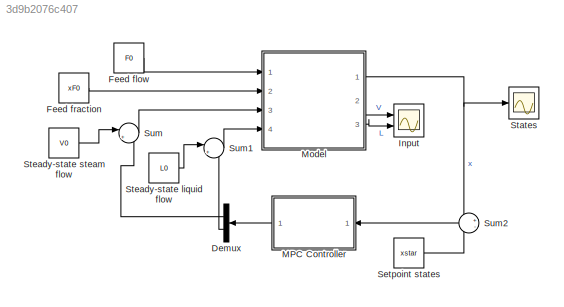
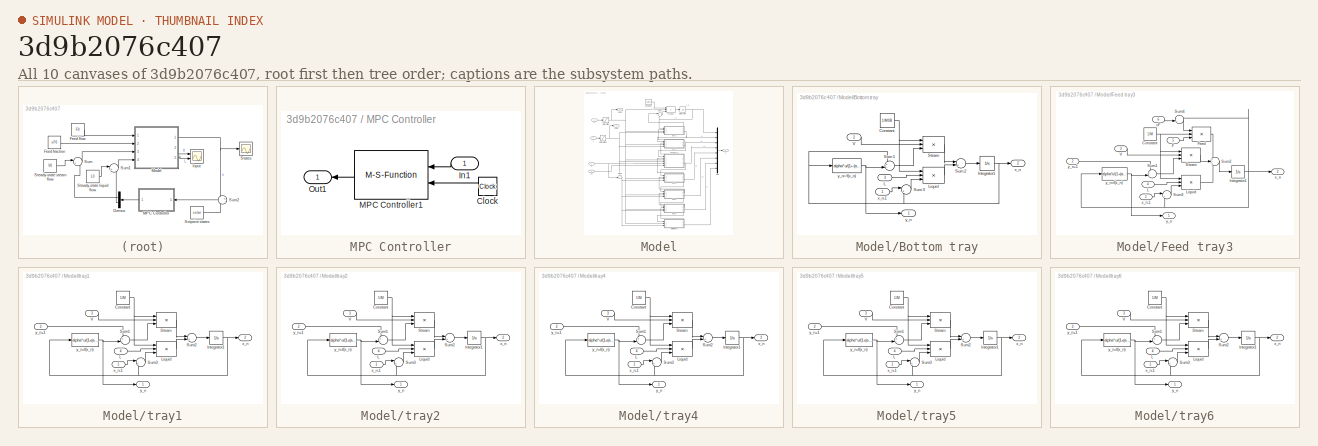
[diagram: thumbnail index - all 10 canvases of the model, root first then tree order]
MODEL mdl_3d9b2076c407
KIND model
CONFIG AbsTol = auto
CONFIG EnableMultiTasking = on
CONFIG FixedStep = auto
CONFIG MaxStep = auto
CONFIG MinStep = auto
CONFIG RelTol = 1e-3
CONFIG SampleTimeConstraint = Unconstrained
CONFIG SolverName = ode45
CONFIG StartTime = 0.0
CONFIG StopTime = 95
BLOCK [Demux] Demux
  DisplayOption = none
  Outputs = 2
  Ports = [1, 2]
BLOCK [Constant] Feed flow
  Value = F0
BLOCK [Constant] Feed fraction
  Value = xF0
BLOCK [Scope] Input
  Floating = off
  NumInputPorts = 2
  Ports = [2]
  ScopeSpecificationString = Simulink.scopes.TimeScopeBlockCfg('CurrentConfiguration', extmgr.ConfigurationSet(extmgr.Configuration('Core','General UI',true),extmgr.Configuration('Core','Source UI',true),extmgr.Configuration('Sources','WiredSimulink',true,'DataLogging',true,'DataLoggingVariableName','U','DataLoggingSaveFormat','StructureWithTime','DataLoggingDecimation','1','DataLoggingDecimateData',true),extmgr.Configuration...<+2422ch>
BLOCK [SubSystem] MPC Controller
  Ports = [1, 1]
  RequestExecContextInheritance = off
BLOCK [Clock] MPC Controller/Clock
  NameLocation = top
BLOCK [Inport] MPC Controller/In1
BLOCK [M-S-Function] MPC Controller/MPC Controller1
  FunctionName = mympccontroller
  Parameters = F,G,M,N,Q1,Q2,ubounds,Ts,ufname
  Ports = [2, 1]
BLOCK [Outport] MPC Controller/Out1
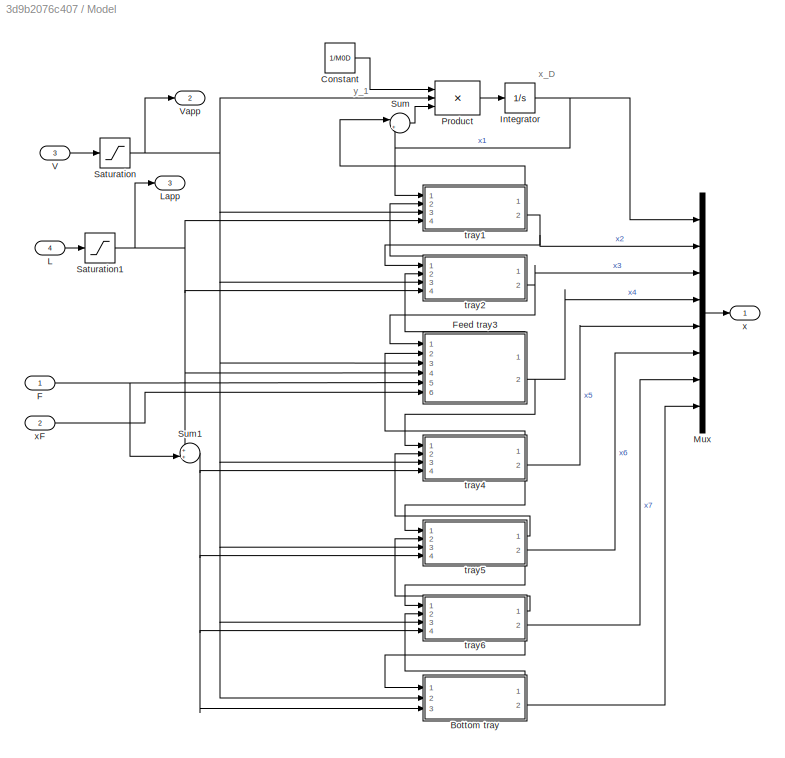
BLOCK [SubSystem] Model
  Ports = [4, 3]
  RequestExecContextInheritance = off
BLOCK [SubSystem] Model/Bottom tray
  Ports = [3, 2]
  RequestExecContextInheritance = off
BLOCK [Constant] Model/Bottom tray/Constant
  Value = 1/M0B
BLOCK [Integrator] Model/Bottom tray/Integrator1
  InitialCondition = x0(8)
  Ports = [1, 1]
BLOCK [Inport] Model/Bottom tray/L
  Port = 3
BLOCK [Product] Model/Bottom tray/Liquid
  Inputs = 3
  OutDataTypeStr = Inherit: Same as first input
  Ports = [3, 1]
  SaturateOnIntegerOverflow = on
BLOCK [Product] Model/Bottom tray/Steam
  Inputs = 3
  OutDataTypeStr = Inherit: Same as first input
  Ports = [3, 1]
  SaturateOnIntegerOverflow = on
BLOCK [Sum] Model/Bottom tray/Sum1
  Inputs = +-|
  Ports = [2, 1]
  SaturateOnIntegerOverflow = on
BLOCK [Sum] Model/Bottom tray/Sum2
  Inputs = |++
  Ports = [2, 1]
  SaturateOnIntegerOverflow = on
BLOCK [Sum] Model/Bottom tray/Sum3
  Inputs = |+-
  Ports = [2, 1]
  SaturateOnIntegerOverflow = on
BLOCK [Inport] Model/Bottom tray/V
  Port = 2
BLOCK [Outport] Model/Bottom tray/x_n
  Port = 2
BLOCK [Inport] Model/Bottom tray/x_n-1
BLOCK [Outport] Model/Bottom tray/y_n
BLOCK [Fcn] Model/Bottom tray/y_n=f(x_n)
  Expr = alpha*u/(1+(alpha-1)*u)
BLOCK [Constant] Model/Constant
  Value = 1/M0D
BLOCK [Inport] Model/F
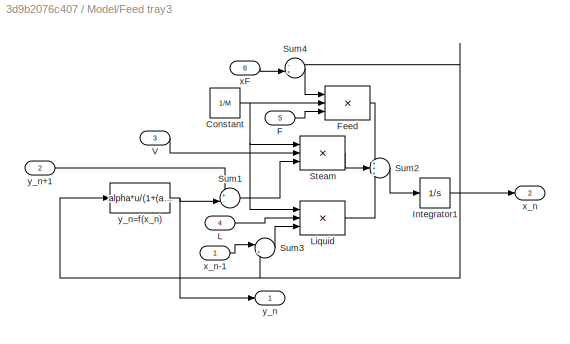
BLOCK [SubSystem] Model/Feed tray3
  Ports = [6, 2]
  RequestExecContextInheritance = off
BLOCK [Constant] Model/Feed tray3/Constant
  Value = 1/M
BLOCK [Inport] Model/Feed tray3/F
  Port = 5
BLOCK [Product] Model/Feed tray3/Feed
  Inputs = 3
  OutDataTypeStr = Inherit: Same as first input
  Ports = [3, 1]
  SaturateOnIntegerOverflow = on
BLOCK [Integrator] Model/Feed tray3/Integrator1
  InitialCondition = x0(4)
  Ports = [1, 1]
BLOCK [Inport] Model/Feed tray3/L
  Port = 4
BLOCK [Product] Model/Feed tray3/Liquid
  Inputs = 3
  OutDataTypeStr = Inherit: Same as first input
  Ports = [3, 1]
  SaturateOnIntegerOverflow = on
BLOCK [Product] Model/Feed tray3/Steam
  Inputs = 3
  OutDataTypeStr = Inherit: Same as first input
  Ports = [3, 1]
  SaturateOnIntegerOverflow = on
BLOCK [Sum] Model/Feed tray3/Sum1
  Inputs = +-|
  Ports = [2, 1]
  SaturateOnIntegerOverflow = on
BLOCK [Sum] Model/Feed tray3/Sum2
  Inputs = +++
  Ports = [3, 1]
  SaturateOnIntegerOverflow = on
BLOCK [Sum] Model/Feed tray3/Sum3
  Inputs = |+-
  Ports = [2, 1]
  SaturateOnIntegerOverflow = on
BLOCK [Sum] Model/Feed tray3/Sum4
  Inputs = -+|
  Ports = [2, 1]
  SaturateOnIntegerOverflow = on
BLOCK [Inport] Model/Feed tray3/V
  Port = 3
BLOCK [Inport] Model/Feed tray3/xF
  Port = 6
BLOCK [Outport] Model/Feed tray3/x_n
  Port = 2
BLOCK [Inport] Model/Feed tray3/x_n-1
BLOCK [Outport] Model/Feed tray3/y_n
BLOCK [Inport] Model/Feed tray3/y_n+1
  Port = 2
BLOCK [Fcn] Model/Feed tray3/y_n=f(x_n)
  Expr = alpha*u/(1+(alpha-1)*u)
BLOCK [Integrator] Model/Integrator
  InitialCondition = x0(1)
  Ports = [1, 1]
BLOCK [Inport] Model/L
  Port = 4
BLOCK [Outport] Model/Lapp
  Port = 3
BLOCK [Mux] Model/Mux
  DisplayOption = bar
  Inputs = 8
  Ports = [8, 1]
BLOCK [Product] Model/Product
  Inputs = 3
  OutDataTypeStr = Inherit: Same as first input
  Ports = [3, 1]
  SaturateOnIntegerOverflow = on
BLOCK [Saturate] Model/Saturation
  LowerLimit = 0
  UpperLimit = 5
BLOCK [Saturate] Model/Saturation1
  LowerLimit = 0
  UpperLimit = 5
BLOCK [Sum] Model/Sum
  Inputs = |+-
  Ports = [2, 1]
  SaturateOnIntegerOverflow = on
BLOCK [Sum] Model/Sum1
  Inputs = ++|
  Ports = [2, 1]
  SaturateOnIntegerOverflow = on
BLOCK [Inport] Model/V
  Port = 3
BLOCK [Outport] Model/Vapp
  Port = 2
BLOCK [SubSystem] Model/tray1
  Ports = [4, 2]
  RequestExecContextInheritance = off
BLOCK [Constant] Model/tray1/Constant
  Value = 1/M
BLOCK [Integrator] Model/tray1/Integrator1
  InitialCondition = x0(2)
  Ports = [1, 1]
BLOCK [Inport] Model/tray1/L
  Port = 4
BLOCK [Product] Model/tray1/Liquid
  Inputs = 3
  OutDataTypeStr = Inherit: Same as first input
  Ports = [3, 1]
  SaturateOnIntegerOverflow = on
BLOCK [Product] Model/tray1/Steam
  Inputs = 3
  OutDataTypeStr = Inherit: Same as first input
  Ports = [3, 1]
  SaturateOnIntegerOverflow = on
BLOCK [Sum] Model/tray1/Sum1
  Inputs = +-|
  Ports = [2, 1]
  SaturateOnIntegerOverflow = on
BLOCK [Sum] Model/tray1/Sum2
  Inputs = |++
  Ports = [2, 1]
  SaturateOnIntegerOverflow = on
BLOCK [Sum] Model/tray1/Sum3
  Inputs = |+-
  Ports = [2, 1]
  SaturateOnIntegerOverflow = on
BLOCK [Inport] Model/tray1/V
  Port = 3
BLOCK [Outport] Model/tray1/x_n
  Port = 2
BLOCK [Inport] Model/tray1/x_n-1
BLOCK [Outport] Model/tray1/y_n
BLOCK [Inport] Model/tray1/y_n+1
  Port = 2
BLOCK [Fcn] Model/tray1/y_n=f(x_n)
  Expr = alpha*u/(1+(alpha-1)*u)
BLOCK [SubSystem] Model/tray2
  Ports = [4, 2]
  RequestExecContextInheritance = off
BLOCK [Constant] Model/tray2/Constant
  Value = 1/M
BLOCK [Integrator] Model/tray2/Integrator1
  InitialCondition = x0(3)
  Ports = [1, 1]
BLOCK [Inport] Model/tray2/L
  Port = 4
BLOCK [Product] Model/tray2/Liquid
  Inputs = 3
  OutDataTypeStr = Inherit: Same as first input
  Ports = [3, 1]
  SaturateOnIntegerOverflow = on
BLOCK [Product] Model/tray2/Steam
  Inputs = 3
  OutDataTypeStr = Inherit: Same as first input
  Ports = [3, 1]
  SaturateOnIntegerOverflow = on
BLOCK [Sum] Model/tray2/Sum1
  Inputs = +-|
  Ports = [2, 1]
  SaturateOnIntegerOverflow = on
BLOCK [Sum] Model/tray2/Sum2
  Inputs = |++
  Ports = [2, 1]
  SaturateOnIntegerOverflow = on
BLOCK [Sum] Model/tray2/Sum3
  Inputs = |+-
  Ports = [2, 1]
  SaturateOnIntegerOverflow = on
BLOCK [Inport] Model/tray2/V
  Port = 3
BLOCK [Outport] Model/tray2/x_n
  Port = 2
BLOCK [Inport] Model/tray2/x_n-1
BLOCK [Outport] Model/tray2/y_n
BLOCK [Inport] Model/tray2/y_n+1
  Port = 2
BLOCK [Fcn] Model/tray2/y_n=f(x_n)
  Expr = alpha*u/(1+(alpha-1)*u)
BLOCK [SubSystem] Model/tray4
  Ports = [4, 2]
  RequestExecContextInheritance = off
BLOCK [Constant] Model/tray4/Constant
  Value = 1/M
BLOCK [Integrator] Model/tray4/Integrator1
  InitialCondition = x0(5)
  Ports = [1, 1]
BLOCK [Inport] Model/tray4/L
  Port = 4
BLOCK [Product] Model/tray4/Liquid
  Inputs = 3
  OutDataTypeStr = Inherit: Same as first input
  Ports = [3, 1]
  SaturateOnIntegerOverflow = on
BLOCK [Product] Model/tray4/Steam
  Inputs = 3
  OutDataTypeStr = Inherit: Same as first input
  Ports = [3, 1]
  SaturateOnIntegerOverflow = on
BLOCK [Sum] Model/tray4/Sum1
  Inputs = +-|
  Ports = [2, 1]
  SaturateOnIntegerOverflow = on
BLOCK [Sum] Model/tray4/Sum2
  Inputs = |++
  Ports = [2, 1]
  SaturateOnIntegerOverflow = on
BLOCK [Sum] Model/tray4/Sum3
  Inputs = |+-
  Ports = [2, 1]
  SaturateOnIntegerOverflow = on
BLOCK [Inport] Model/tray4/V
  Port = 3
BLOCK [Outport] Model/tray4/x_n
  Port = 2
BLOCK [Inport] Model/tray4/x_n-1
BLOCK [Outport] Model/tray4/y_n
BLOCK [Inport] Model/tray4/y_n+1
  Port = 2
BLOCK [Fcn] Model/tray4/y_n=f(x_n)
  Expr = alpha*u/(1+(alpha-1)*u)
BLOCK [SubSystem] Model/tray5
  Ports = [4, 2]
  RequestExecContextInheritance = off
BLOCK [Constant] Model/tray5/Constant
  Value = 1/M
BLOCK [Integrator] Model/tray5/Integrator1
  InitialCondition = x0(6)
  Ports = [1, 1]
BLOCK [Inport] Model/tray5/L
  Port = 4
BLOCK [Product] Model/tray5/Liquid
  Inputs = 3
  OutDataTypeStr = Inherit: Same as first input
  Ports = [3, 1]
  SaturateOnIntegerOverflow = on
BLOCK [Product] Model/tray5/Steam
  Inputs = 3
  OutDataTypeStr = Inherit: Same as first input
  Ports = [3, 1]
  SaturateOnIntegerOverflow = on
BLOCK [Sum] Model/tray5/Sum1
  Inputs = +-|
  Ports = [2, 1]
  SaturateOnIntegerOverflow = on
BLOCK [Sum] Model/tray5/Sum2
  Inputs = |++
  Ports = [2, 1]
  SaturateOnIntegerOverflow = on
BLOCK [Sum] Model/tray5/Sum3
  Inputs = |+-
  Ports = [2, 1]
  SaturateOnIntegerOverflow = on
BLOCK [Inport] Model/tray5/V
  Port = 3
BLOCK [Outport] Model/tray5/x_n
  Port = 2
BLOCK [Inport] Model/tray5/x_n-1
BLOCK [Outport] Model/tray5/y_n
BLOCK [Inport] Model/tray5/y_n+1
  Port = 2
BLOCK [Fcn] Model/tray5/y_n=f(x_n)
  Expr = alpha*u/(1+(alpha-1)*u)
BLOCK [SubSystem] Model/tray6
  Ports = [4, 2]
  RequestExecContextInheritance = off
BLOCK [Constant] Model/tray6/Constant
  Value = 1/M
BLOCK [Integrator] Model/tray6/Integrator1
  InitialCondition = x0(7)
  Ports = [1, 1]
BLOCK [Inport] Model/tray6/L
  Port = 4
BLOCK [Product] Model/tray6/Liquid
  Inputs = 3
  OutDataTypeStr = Inherit: Same as first input
  Ports = [3, 1]
  SaturateOnIntegerOverflow = on
BLOCK [Product] Model/tray6/Steam
  Inputs = 3
  OutDataTypeStr = Inherit: Same as first input
  Ports = [3, 1]
  SaturateOnIntegerOverflow = on
BLOCK [Sum] Model/tray6/Sum1
  Inputs = +-|
  Ports = [2, 1]
  SaturateOnIntegerOverflow = on
BLOCK [Sum] Model/tray6/Sum2
  Inputs = |++
  Ports = [2, 1]
  SaturateOnIntegerOverflow = on
BLOCK [Sum] Model/tray6/Sum3
  Inputs = |+-
  Ports = [2, 1]
  SaturateOnIntegerOverflow = on
BLOCK [Inport] Model/tray6/V
  Port = 3
BLOCK [Outport] Model/tray6/x_n
  Port = 2
BLOCK [Inport] Model/tray6/x_n-1
BLOCK [Outport] Model/tray6/y_n
BLOCK [Inport] Model/tray6/y_n+1
  Port = 2
BLOCK [Fcn] Model/tray6/y_n=f(x_n)
  Expr = alpha*u/(1+(alpha-1)*u)
BLOCK [Outport] Model/x
BLOCK [Inport] Model/xF
  Port = 2
BLOCK [Constant] Setpoint states
  Value = xstar
BLOCK [Scope] States
  Floating = off
  NumInputPorts = 1
  Ports = [1]
  ScopeSpecificationString = Simulink.scopes.TimeScopeBlockCfg('CurrentConfiguration', extmgr.ConfigurationSet(extmgr.Configuration('Core','General UI',true),extmgr.Configuration('Core','Source UI',true),extmgr.Configuration('Sources','WiredSimulink',true,'DataLogging',true,'DataLoggingVariableName','X','DataLoggingSaveFormat','StructureWithTime','DataLoggingDecimation','1','DataLoggingDecimateData',true),extmgr.Configuration...<+1726ch>
BLOCK [Constant] Steady-state liquid flow
  Value = L0
BLOCK [Constant] Steady-state steam flow
  Value = V0
BLOCK [Sum] Sum
  Inputs = |++
  Ports = [2, 1]
  SaturateOnIntegerOverflow = on
BLOCK [Sum] Sum1
  Inputs = |++
  Ports = [2, 1]
  SaturateOnIntegerOverflow = on
BLOCK [Sum] Sum2
  Inputs = +-
  Ports = [2, 1]
  SaturateOnIntegerOverflow = on
ANNOTATION Model: x_D
ANNOTATION Model: y_1
LINE Demux:1 -> Sum:2
LINE Demux:2 -> Sum1:2
LINE Feed flow:1 -> Model:1
LINE Feed fraction:1 -> Model:2
LINE MPC Controller/Clock:1 -> MPC Controller/MPC Controller1:2
LINE MPC Controller/In1:1 -> MPC Controller/MPC Controller1:1
LINE MPC Controller/MPC Controller1:1 -> MPC Controller/Out1:1
LINE MPC Controller:1 -> Demux:1
NET Model/Bottom tray/Constant:1 -> Model/Bottom tray/Liquid:1, Model/Bottom tray/Steam:1
NET Model/Bottom tray/Integrator1:1 -> Model/Bottom tray/Sum1:1, Model/Bottom tray/Sum3:2, Model/Bottom tray/x_n:1, Model/Bottom tray/y_n=f(x_n):1
LINE Model/Bottom tray/L:1 -> Model/Bottom tray/Liquid:2
LINE Model/Bottom tray/Liquid:1 -> Model/Bottom tray/Sum2:2
LINE Model/Bottom tray/Steam:1 -> Model/Bottom tray/Sum2:1
LINE Model/Bottom tray/Sum1:1 -> Model/Bottom tray/Steam:3
LINE Model/Bottom tray/Sum2:1 -> Model/Bottom tray/Integrator1:1
LINE Model/Bottom tray/Sum3:1 -> Model/Bottom tray/Liquid:3
LINE Model/Bottom tray/V:1 -> Model/Bottom tray/Steam:2
LINE Model/Bottom tray/x_n-1:1 -> Model/Bottom tray/Sum3:1
NET Model/Bottom tray/y_n=f(x_n):1 -> Model/Bottom tray/Sum1:2, Model/Bottom tray/y_n:1
LINE Model/Bottom tray:1 -> Model/tray6:2
LINE Model/Bottom tray:2 -> Model/Mux:8
LINE Model/Constant:1 -> Model/Product:1
NET Model/F:1 -> Model/Feed tray3:5, Model/Sum1:2
NET Model/Feed tray3/Constant:1 -> Model/Feed tray3/Feed:2, Model/Feed tray3/Liquid:1, Model/Feed tray3/Steam:1
LINE Model/Feed tray3/F:1 -> Model/Feed tray3/Feed:3
LINE Model/Feed tray3/Feed:1 -> Model/Feed tray3/Sum2:1
NET Model/Feed tray3/Integrator1:1 -> Model/Feed tray3/Sum3:2, Model/Feed tray3/Sum4:1, Model/Feed tray3/x_n:1, Model/Feed tray3/y_n=f(x_n):1
LINE Model/Feed tray3/L:1 -> Model/Feed tray3/Liquid:2
LINE Model/Feed tray3/Liquid:1 -> Model/Feed tray3/Sum2:3
LINE Model/Feed tray3/Steam:1 -> Model/Feed tray3/Sum2:2
LINE Model/Feed tray3/Sum1:1 -> Model/Feed tray3/Steam:3
LINE Model/Feed tray3/Sum2:1 -> Model/Feed tray3/Integrator1:1
LINE Model/Feed tray3/Sum3:1 -> Model/Feed tray3/Liquid:3
LINE Model/Feed tray3/Sum4:1 -> Model/Feed tray3/Feed:1
LINE Model/Feed tray3/V:1 -> Model/Feed tray3/Steam:2
LINE Model/Feed tray3/xF:1 -> Model/Feed tray3/Sum4:2
LINE Model/Feed tray3/x_n-1:1 -> Model/Feed tray3/Sum3:1
LINE Model/Feed tray3/y_n+1:1 -> Model/Feed tray3/Sum1:1
NET Model/Feed tray3/y_n=f(x_n):1 -> Model/Feed tray3/Sum1:2, Model/Feed tray3/y_n:1
LINE Model/Feed tray3:1 -> Model/tray2:2
NET Model/Feed tray3:2 -> Model/Mux:4, Model/tray4:1
NET Model/Integrator:1 -> Model/Mux:1, Model/Sum:2, Model/tray1:1
LINE Model/L:1 -> Model/Saturation1:1
LINE Model/Mux:1 -> Model/x:1
LINE Model/Product:1 -> Model/Integrator:1
NET Model/Saturation1:1 -> Model/Feed tray3:4, Model/Lapp:1, Model/Sum1:1, Model/tray1:4, Model/tray2:4
NET Model/Saturation:1 -> Model/Bottom tray:2, Model/Feed tray3:3, Model/Product:2, Model/Vapp:1, Model/tray1:3, Model/tray2:3, Model/tray4:3, Model/tray5:3, Model/tray6:3
NET Model/Sum1:1 -> Model/Bottom tray:3, Model/tray4:4, Model/tray5:4, Model/tray6:4
LINE Model/Sum:1 -> Model/Product:3
LINE Model/V:1 -> Model/Saturation:1
NET Model/tray1/Constant:1 -> Model/tray1/Liquid:1, Model/tray1/Steam:1
NET Model/tray1/Integrator1:1 -> Model/tray1/Sum3:2, Model/tray1/x_n:1, Model/tray1/y_n=f(x_n):1
LINE Model/tray1/L:1 -> Model/tray1/Liquid:2
LINE Model/tray1/Liquid:1 -> Model/tray1/Sum2:2
LINE Model/tray1/Steam:1 -> Model/tray1/Sum2:1
LINE Model/tray1/Sum1:1 -> Model/tray1/Steam:3
LINE Model/tray1/Sum2:1 -> Model/tray1/Integrator1:1
LINE Model/tray1/Sum3:1 -> Model/tray1/Liquid:3
LINE Model/tray1/V:1 -> Model/tray1/Steam:2
LINE Model/tray1/x_n-1:1 -> Model/tray1/Sum3:1
LINE Model/tray1/y_n+1:1 -> Model/tray1/Sum1:1
NET Model/tray1/y_n=f(x_n):1 -> Model/tray1/Sum1:2, Model/tray1/y_n:1
LINE Model/tray1:1 -> Model/Sum:1
NET Model/tray1:2 -> Model/Mux:2, Model/tray2:1
NET Model/tray2/Constant:1 -> Model/tray2/Liquid:1, Model/tray2/Steam:1
NET Model/tray2/Integrator1:1 -> Model/tray2/Sum3:2, Model/tray2/x_n:1, Model/tray2/y_n=f(x_n):1
LINE Model/tray2/L:1 -> Model/tray2/Liquid:2
LINE Model/tray2/Liquid:1 -> Model/tray2/Sum2:2
LINE Model/tray2/Steam:1 -> Model/tray2/Sum2:1
LINE Model/tray2/Sum1:1 -> Model/tray2/Steam:3
LINE Model/tray2/Sum2:1 -> Model/tray2/Integrator1:1
LINE Model/tray2/Sum3:1 -> Model/tray2/Liquid:3
LINE Model/tray2/V:1 -> Model/tray2/Steam:2
LINE Model/tray2/x_n-1:1 -> Model/tray2/Sum3:1
LINE Model/tray2/y_n+1:1 -> Model/tray2/Sum1:1
NET Model/tray2/y_n=f(x_n):1 -> Model/tray2/Sum1:2, Model/tray2/y_n:1
LINE Model/tray2:1 -> Model/tray1:2
NET Model/tray2:2 -> Model/Feed tray3:1, Model/Mux:3
NET Model/tray4/Constant:1 -> Model/tray4/Liquid:1, Model/tray4/Steam:1
NET Model/tray4/Integrator1:1 -> Model/tray4/Sum3:2, Model/tray4/x_n:1, Model/tray4/y_n=f(x_n):1
LINE Model/tray4/L:1 -> Model/tray4/Liquid:2
LINE Model/tray4/Liquid:1 -> Model/tray4/Sum2:2
LINE Model/tray4/Steam:1 -> Model/tray4/Sum2:1
LINE Model/tray4/Sum1:1 -> Model/tray4/Steam:3
LINE Model/tray4/Sum2:1 -> Model/tray4/Integrator1:1
LINE Model/tray4/Sum3:1 -> Model/tray4/Liquid:3
LINE Model/tray4/V:1 -> Model/tray4/Steam:2
LINE Model/tray4/x_n-1:1 -> Model/tray4/Sum3:1
LINE Model/tray4/y_n+1:1 -> Model/tray4/Sum1:1
NET Model/tray4/y_n=f(x_n):1 -> Model/tray4/Sum1:2, Model/tray4/y_n:1
LINE Model/tray4:1 -> Model/Feed tray3:2
NET Model/tray4:2 -> Model/Mux:5, Model/tray5:1
NET Model/tray5/Constant:1 -> Model/tray5/Liquid:1, Model/tray5/Steam:1
NET Model/tray5/Integrator1:1 -> Model/tray5/Sum3:2, Model/tray5/x_n:1, Model/tray5/y_n=f(x_n):1
LINE Model/tray5/L:1 -> Model/tray5/Liquid:2
LINE Model/tray5/Liquid:1 -> Model/tray5/Sum2:2
LINE Model/tray5/Steam:1 -> Model/tray5/Sum2:1
LINE Model/tray5/Sum1:1 -> Model/tray5/Steam:3
LINE Model/tray5/Sum2:1 -> Model/tray5/Integrator1:1
LINE Model/tray5/Sum3:1 -> Model/tray5/Liquid:3
LINE Model/tray5/V:1 -> Model/tray5/Steam:2
LINE Model/tray5/x_n-1:1 -> Model/tray5/Sum3:1
LINE Model/tray5/y_n+1:1 -> Model/tray5/Sum1:1
NET Model/tray5/y_n=f(x_n):1 -> Model/tray5/Sum1:2, Model/tray5/y_n:1
LINE Model/tray5:1 -> Model/tray4:2
NET Model/tray5:2 -> Model/Mux:6, Model/tray6:1
NET Model/tray6/Constant:1 -> Model/tray6/Liquid:1, Model/tray6/Steam:1
NET Model/tray6/Integrator1:1 -> Model/tray6/Sum3:2, Model/tray6/x_n:1, Model/tray6/y_n=f(x_n):1
LINE Model/tray6/L:1 -> Model/tray6/Liquid:2
LINE Model/tray6/Liquid:1 -> Model/tray6/Sum2:2
LINE Model/tray6/Steam:1 -> Model/tray6/Sum2:1
LINE Model/tray6/Sum1:1 -> Model/tray6/Steam:3
LINE Model/tray6/Sum2:1 -> Model/tray6/Integrator1:1
LINE Model/tray6/Sum3:1 -> Model/tray6/Liquid:3
LINE Model/tray6/V:1 -> Model/tray6/Steam:2
LINE Model/tray6/x_n-1:1 -> Model/tray6/Sum3:1
LINE Model/tray6/y_n+1:1 -> Model/tray6/Sum1:1
NET Model/tray6/y_n=f(x_n):1 -> Model/tray6/Sum1:2, Model/tray6/y_n:1
LINE Model/tray6:1 -> Model/tray5:2
NET Model/tray6:2 -> Model/Bottom tray:1, Model/Mux:7
LINE Model/xF:1 -> Model/Feed tray3:6
NET Model:1 -> States:1, Sum2:1
LINE Model:2 -> Input:1
LINE Model:3 -> Input:2
LINE Setpoint states:1 -> Sum2:2
LINE Steady-state liquid flow:1 -> Sum1:1
LINE Steady-state steam flow:1 -> Sum:1
LINE Sum1:1 -> Model:4
LINE Sum2:1 -> MPC Controller:1
LINE Sum:1 -> Model:3
note: NET lines group one-source signal fan-out (src -> all destinations, sorted); 1:1 wires keep LINE
